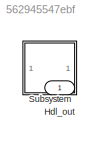
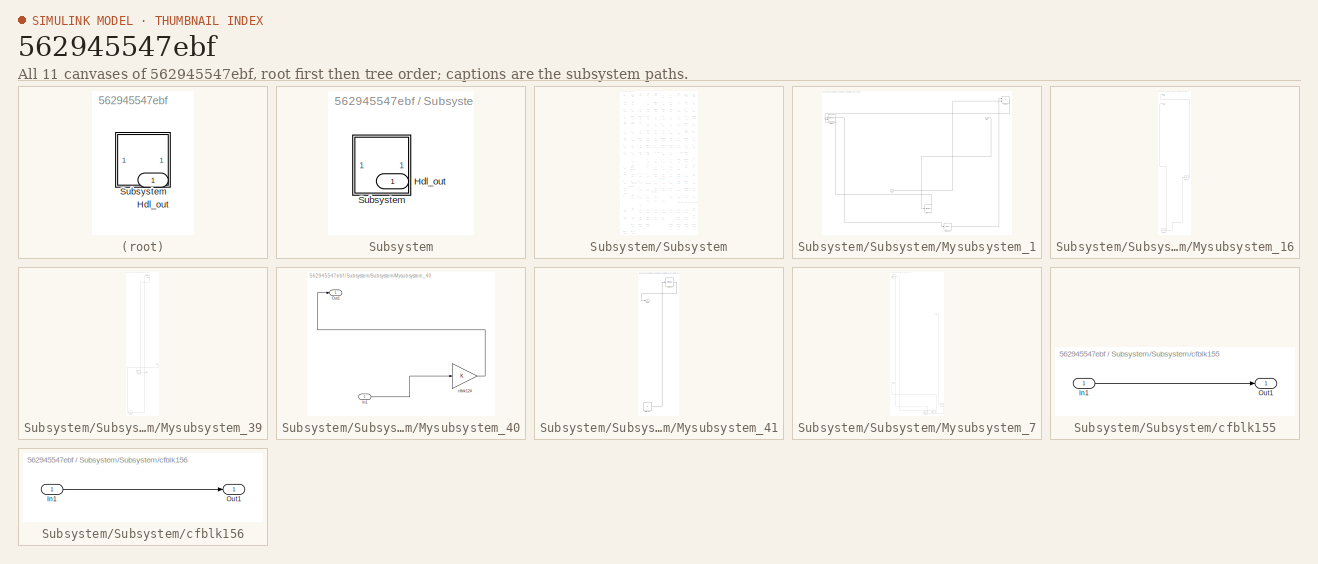
[diagram: thumbnail index - all 11 canvases of the model, root first then tree order]
MODEL slx_562945547ebf
KIND model
CONFIG AbsTol = auto
CONFIG EnableMultiTasking = off
CONFIG FixedStep = auto
CONFIG MaxStep = auto
CONFIG MinStep = auto
CONFIG RelTol = 1e-3
CONFIG SampleTimeConstraint = Unconstrained
CONFIG SolverName = VariableStepAuto
CONFIG StartTime = 0.0
CONFIG StopTime = 10.0
BLOCK [Outport] Hdl_out
  OutDataTypeStr = uint8
BLOCK [SubSystem] Subsystem
BLOCK [Outport] Subsystem/Hdl_out
  OutDataTypeStr = uint8
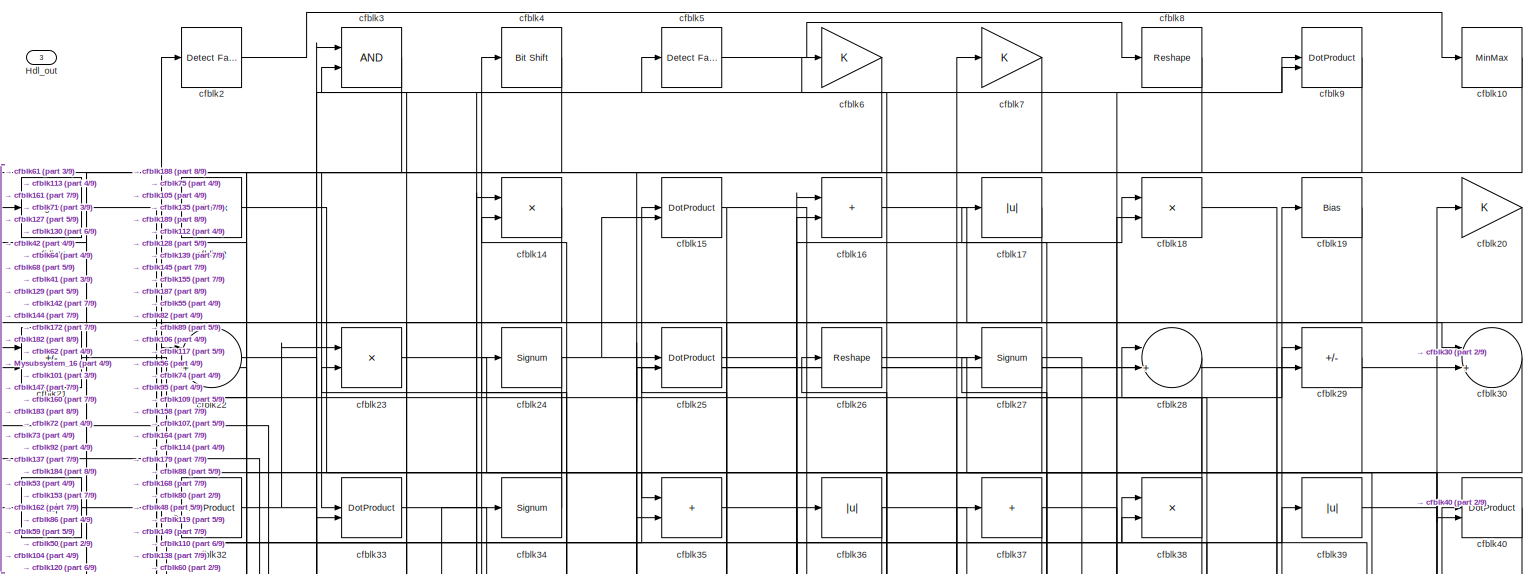
[diagram: Subsystem/Subsystem - part 1/9, full width, top band]
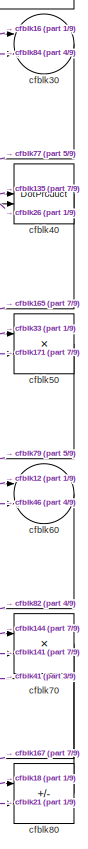
[diagram: Subsystem/Subsystem - part 2/9, top right region]
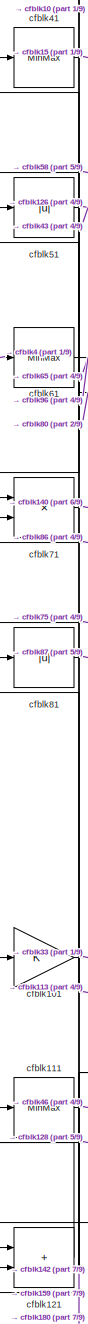
[diagram: Subsystem/Subsystem - part 3/9, middle left region]
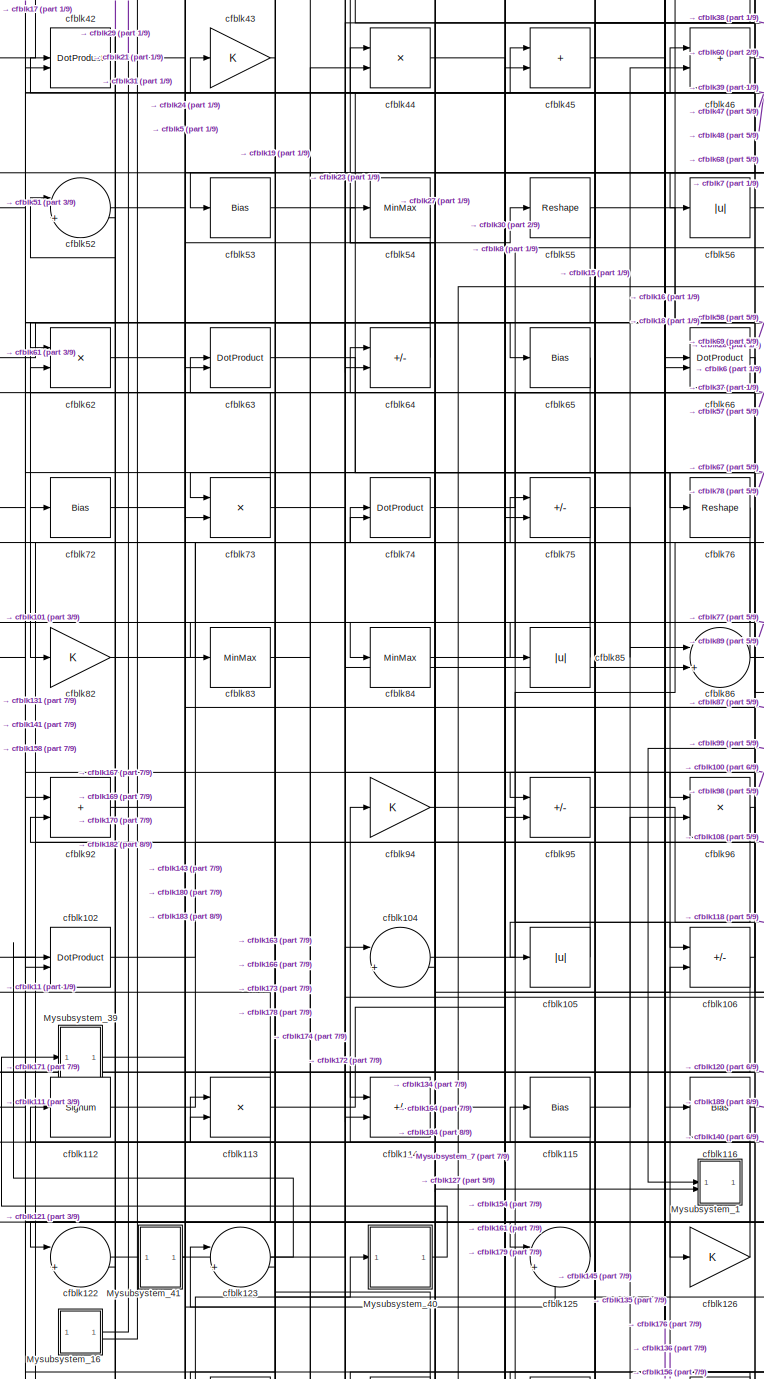
[diagram: Subsystem/Subsystem - part 4/9, central region]
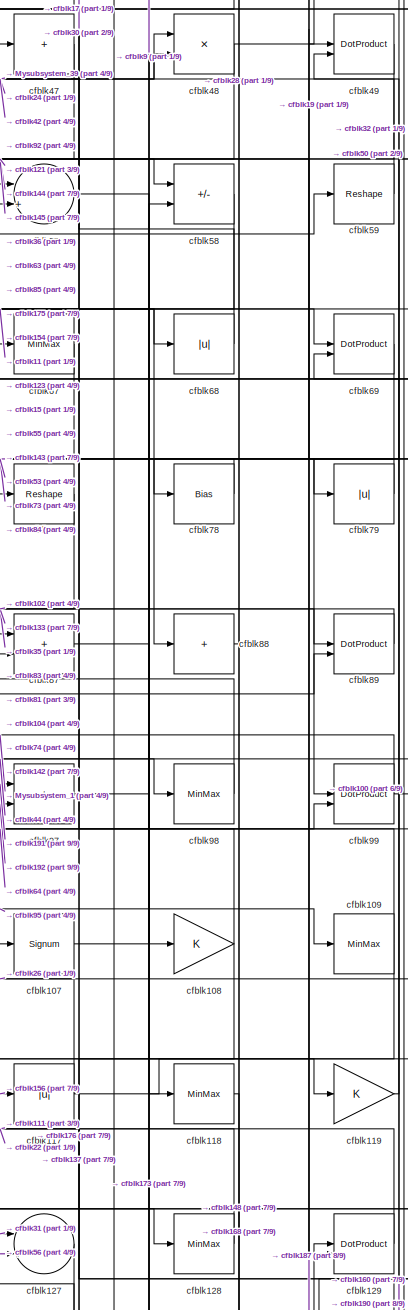
[diagram: Subsystem/Subsystem - part 5/9, middle right region]
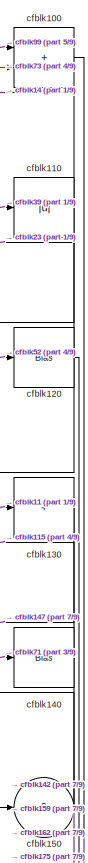
[diagram: Subsystem/Subsystem - part 6/9, middle right region]
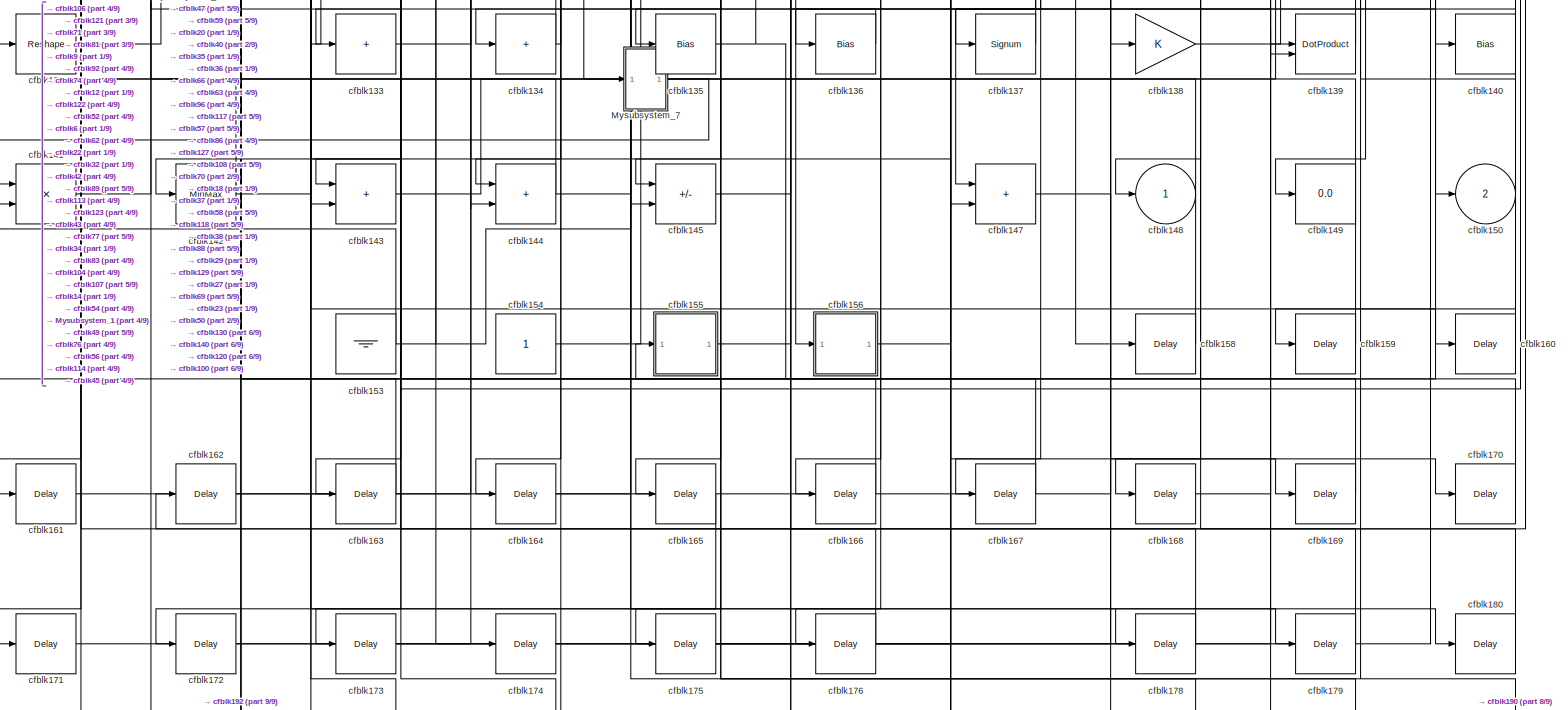
[diagram: Subsystem/Subsystem - part 7/9, full width, bottom band]
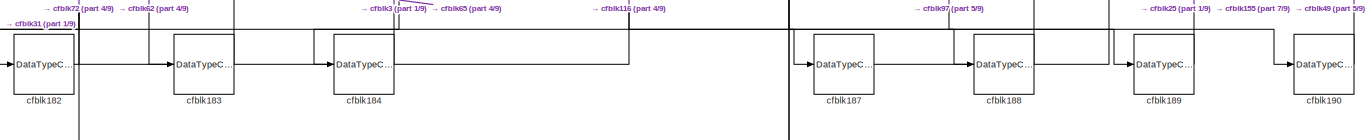
[diagram: Subsystem/Subsystem - part 8/9, full width, bottom band]
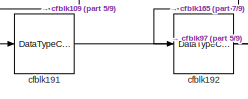
[diagram: Subsystem/Subsystem - part 9/9, bottom left region]
BLOCK [SubSystem] Subsystem/Subsystem
BLOCK [Outport] Subsystem/Subsystem/Hdl_out
  OutDataTypeStr = uint8
  Port = 3
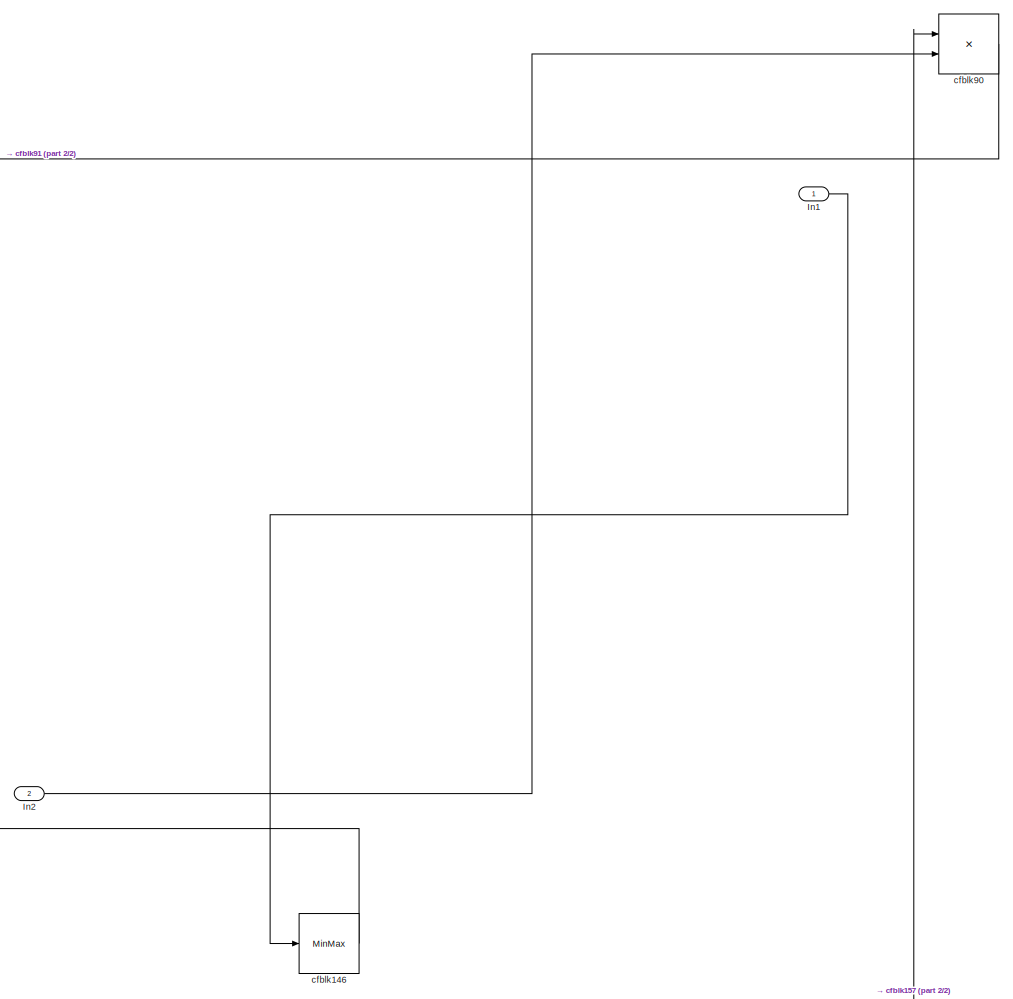
[diagram: Subsystem/Subsystem/Mysubsystem_1 - part 1/2, right side, full height]
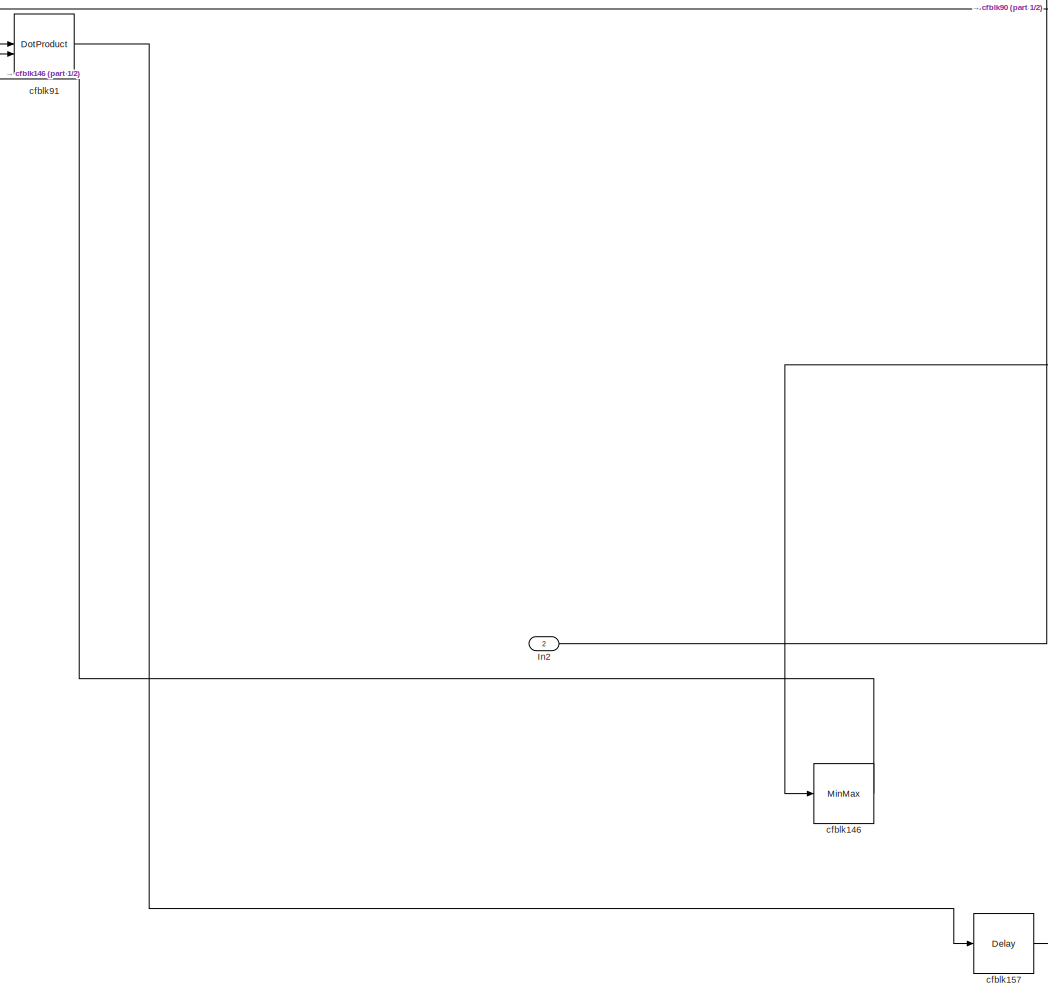
[diagram: Subsystem/Subsystem/Mysubsystem_1 - part 2/2, center side, full height]
BLOCK [SubSystem] Subsystem/Subsystem/Mysubsystem_1
  RTWFcnName = Mysubsystem_1
  RTWFcnNameOpts = User specified
  RTWFileNameOpts = Use function name
  RTWSystemCode = Reusable function
  TreatAsAtomicUnit = on
BLOCK [Inport] Subsystem/Subsystem/Mysubsystem_1/In1
BLOCK [Inport] Subsystem/Subsystem/Mysubsystem_1/In2
  Port = 2
BLOCK [MinMax] Subsystem/Subsystem/Mysubsystem_1/cfblk146
BLOCK [Delay] Subsystem/Subsystem/Mysubsystem_1/cfblk157
  InputPortMap = u0
  SampleTime = 1
BLOCK [Product] Subsystem/Subsystem/Mysubsystem_1/cfblk90
  Inputs = */
  RndMeth = Zero
  SaturateOnIntegerOverflow = on
BLOCK [DotProduct] Subsystem/Subsystem/Mysubsystem_1/cfblk91
  OutDataTypeStr = Inherit: Inherit via internal rule
BLOCK [SubSystem] Subsystem/Subsystem/Mysubsystem_16
  RTWFcnName = Mysubsystem_16
  RTWFcnNameOpts = User specified
  RTWFileNameOpts = Use function name
  RTWSystemCode = Reusable function
  TreatAsAtomicUnit = on
BLOCK [Outport] Subsystem/Subsystem/Mysubsystem_16/Out1
BLOCK [Bias] Subsystem/Subsystem/Mysubsystem_16/cfblk103
  Bias = 0.0
  SaturateOnIntegerOverflow = off
BLOCK [Reference] Subsystem/Subsystem/Mysubsystem_16/cfblk151  REF=hdlsllib/Sources/Counter
Free-Running
  SourceBlock = hdlsllib/Sources/Counter\nFree-Running
  SourceType = Counter Free-Running
BLOCK [Outport] Subsystem/Subsystem/Mysubsystem_16/y
  Port = 2
BLOCK [SubSystem] Subsystem/Subsystem/Mysubsystem_39
  RTWFcnName = Mysubsystem_39
  RTWFcnNameOpts = User specified
  RTWFileNameOpts = Use function name
  RTWSystemCode = Reusable function
  TreatAsAtomicUnit = on
BLOCK [Inport] Subsystem/Subsystem/Mysubsystem_39/In1
BLOCK [Outport] Subsystem/Subsystem/Mysubsystem_39/Out1
BLOCK [Reshape] Subsystem/Subsystem/Mysubsystem_39/cfblk13
BLOCK [Reshape] Subsystem/Subsystem/Mysubsystem_39/cfblk132
BLOCK [Delay] Subsystem/Subsystem/Mysubsystem_39/cfblk181
  InputPortMap = u0
  SampleTime = 1
BLOCK [SubSystem] Subsystem/Subsystem/Mysubsystem_40
  RTWFcnName = Mysubsystem_40
  RTWFcnNameOpts = User specified
  RTWFileNameOpts = Use function name
  RTWSystemCode = Reusable function
  TreatAsAtomicUnit = on
BLOCK [Inport] Subsystem/Subsystem/Mysubsystem_40/In1
BLOCK [Outport] Subsystem/Subsystem/Mysubsystem_40/Out1
BLOCK [Gain] Subsystem/Subsystem/Mysubsystem_40/cfblk124
BLOCK [SubSystem] Subsystem/Subsystem/Mysubsystem_41
  RTWFcnName = Mysubsystem_41
  RTWFcnNameOpts = User specified
  RTWFileNameOpts = Use function name
  RTWSystemCode = Reusable function
  TreatAsAtomicUnit = on
BLOCK [Outport] Subsystem/Subsystem/Mysubsystem_41/Out1
BLOCK [Constant] Subsystem/Subsystem/Mysubsystem_41/cfblk152
  SampleTime = -1
BLOCK [MinMax] Subsystem/Subsystem/Mysubsystem_41/cfblk93
BLOCK [SubSystem] Subsystem/Subsystem/Mysubsystem_7
  RTWFcnName = Mysubsystem_7
  RTWFcnNameOpts = User specified
  RTWFileNameOpts = Use function name
  RTWSystemCode = Reusable function
  TreatAsAtomicUnit = on
BLOCK [Inport] Subsystem/Subsystem/Mysubsystem_7/In1
BLOCK [Outport] Subsystem/Subsystem/Mysubsystem_7/Out1
BLOCK [Reference] Subsystem/Subsystem/Mysubsystem_7/cfblk1  REF=simulink/Logic and Bit
Operations/Bitwise
Operator
  LibrarySourceBlock = hdlsllib/Logic and Bit\nOperations/Bitwise\nOperator
  SourceBlock = simulink/Logic and Bit\nOperations/Bitwise\nOperator
  SourceType = Bitwise Operator
BLOCK [Delay] Subsystem/Subsystem/Mysubsystem_7/cfblk177
  InputPortMap = u0
  SampleTime = 1
BLOCK [DataTypeConversion] Subsystem/Subsystem/Mysubsystem_7/cfblk185
  OutDataTypeStr = boolean
  RndMeth = Floor
  SaturateOnIntegerOverflow = off
BLOCK [DataTypeConversion] Subsystem/Subsystem/Mysubsystem_7/cfblk186
  OutDataTypeStr = uint8
  RndMeth = Floor
  SaturateOnIntegerOverflow = off
BLOCK [MinMax] Subsystem/Subsystem/cfblk10
  OutDataTypeStr = uint8
BLOCK [Sum] Subsystem/Subsystem/cfblk100
  IconShape = rectangular
  OutDataTypeStr = uint8
BLOCK [Gain] Subsystem/Subsystem/cfblk101
  OutDataTypeStr = uint8
BLOCK [DotProduct] Subsystem/Subsystem/cfblk102
  OutDataTypeStr = uint8
BLOCK [Sum] Subsystem/Subsystem/cfblk104
  Inputs = |++
  OutDataTypeStr = uint8
BLOCK [Abs] Subsystem/Subsystem/cfblk105
  OutDataTypeStr = uint8
  SaturateOnIntegerOverflow = off
BLOCK [Sum] Subsystem/Subsystem/cfblk106
  IconShape = rectangular
  Inputs = +-
  OutDataTypeStr = uint8
BLOCK [Signum] Subsystem/Subsystem/cfblk107
BLOCK [Gain] Subsystem/Subsystem/cfblk108
  OutDataTypeStr = uint8
BLOCK [MinMax] Subsystem/Subsystem/cfblk109
  OutDataTypeStr = uint8
BLOCK [Signum] Subsystem/Subsystem/cfblk11
BLOCK [Abs] Subsystem/Subsystem/cfblk110
  OutDataTypeStr = uint8
  SaturateOnIntegerOverflow = off
BLOCK [MinMax] Subsystem/Subsystem/cfblk111
  OutDataTypeStr = uint8
BLOCK [Signum] Subsystem/Subsystem/cfblk112
BLOCK [Product] Subsystem/Subsystem/cfblk113
  Inputs = */
  OutDataTypeStr = uint8
  RndMeth = Zero
  SaturateOnIntegerOverflow = on
BLOCK [Sum] Subsystem/Subsystem/cfblk114
  IconShape = rectangular
  Inputs = +-
  OutDataTypeStr = uint8
BLOCK [Bias] Subsystem/Subsystem/cfblk115
  Bias = 0.0
  SaturateOnIntegerOverflow = off
BLOCK [Bias] Subsystem/Subsystem/cfblk116
  Bias = 0.0
  SaturateOnIntegerOverflow = off
BLOCK [Abs] Subsystem/Subsystem/cfblk117
  OutDataTypeStr = uint8
  SaturateOnIntegerOverflow = off
BLOCK [MinMax] Subsystem/Subsystem/cfblk118
  OutDataTypeStr = uint8
BLOCK [Gain] Subsystem/Subsystem/cfblk119
  OutDataTypeStr = uint8
BLOCK [MinMax] Subsystem/Subsystem/cfblk12
  OutDataTypeStr = uint8
BLOCK [Bias] Subsystem/Subsystem/cfblk120
  Bias = 0.0
  SaturateOnIntegerOverflow = off
BLOCK [Sum] Subsystem/Subsystem/cfblk121
  IconShape = rectangular
  OutDataTypeStr = uint8
BLOCK [Sum] Subsystem/Subsystem/cfblk122
  Inputs = |++
  OutDataTypeStr = uint8
BLOCK [Sum] Subsystem/Subsystem/cfblk123
  Inputs = |++
  OutDataTypeStr = uint8
BLOCK [Sum] Subsystem/Subsystem/cfblk125
  Inputs = |++
  OutDataTypeStr = uint8
BLOCK [Gain] Subsystem/Subsystem/cfblk126
  OutDataTypeStr = uint8
BLOCK [Sum] Subsystem/Subsystem/cfblk127
  Inputs = |++
  OutDataTypeStr = uint8
BLOCK [MinMax] Subsystem/Subsystem/cfblk128
  OutDataTypeStr = uint8
BLOCK [DotProduct] Subsystem/Subsystem/cfblk129
  OutDataTypeStr = uint8
BLOCK [Sum] Subsystem/Subsystem/cfblk130
  IconShape = rectangular
  Inputs = +
  OutDataTypeStr = uint8
BLOCK [Reshape] Subsystem/Subsystem/cfblk131
BLOCK [Sum] Subsystem/Subsystem/cfblk133
  IconShape = rectangular
  Inputs = +
  OutDataTypeStr = uint8
BLOCK [Sum] Subsystem/Subsystem/cfblk134
  IconShape = rectangular
  Inputs = +
  OutDataTypeStr = uint8
BLOCK [Bias] Subsystem/Subsystem/cfblk135
  Bias = 0.0
  SaturateOnIntegerOverflow = off
BLOCK [Bias] Subsystem/Subsystem/cfblk136
  Bias = 0.0
  SaturateOnIntegerOverflow = off
BLOCK [Signum] Subsystem/Subsystem/cfblk137
BLOCK [Gain] Subsystem/Subsystem/cfblk138
  OutDataTypeStr = uint8
BLOCK [DotProduct] Subsystem/Subsystem/cfblk139
  OutDataTypeStr = uint8
BLOCK [Product] Subsystem/Subsystem/cfblk14
  Inputs = */
  OutDataTypeStr = uint8
  RndMeth = Zero
  SaturateOnIntegerOverflow = on
BLOCK [Bias] Subsystem/Subsystem/cfblk140
  Bias = 0.0
  SaturateOnIntegerOverflow = off
BLOCK [Product] Subsystem/Subsystem/cfblk141
  Inputs = */
  OutDataTypeStr = uint8
  RndMeth = Zero
  SaturateOnIntegerOverflow = on
BLOCK [MinMax] Subsystem/Subsystem/cfblk142
  OutDataTypeStr = uint8
BLOCK [Sum] Subsystem/Subsystem/cfblk143
  IconShape = rectangular
  OutDataTypeStr = uint8
BLOCK [Sum] Subsystem/Subsystem/cfblk144
  IconShape = rectangular
  OutDataTypeStr = uint8
BLOCK [Sum] Subsystem/Subsystem/cfblk145
  IconShape = rectangular
  Inputs = +-
  OutDataTypeStr = uint8
BLOCK [Sum] Subsystem/Subsystem/cfblk147
  IconShape = rectangular
  OutDataTypeStr = uint8
BLOCK [Outport] Subsystem/Subsystem/cfblk148
  OutDataTypeStr = uint8
  VectorParamsAs1DForOutWhenUnconnected = off
BLOCK [Display] Subsystem/Subsystem/cfblk149
  Decimation = 1
BLOCK [DotProduct] Subsystem/Subsystem/cfblk15
  OutDataTypeStr = uint8
BLOCK [Outport] Subsystem/Subsystem/cfblk150
  OutDataTypeStr = uint8
  Port = 2
  VectorParamsAs1DForOutWhenUnconnected = off
BLOCK [Ground] Subsystem/Subsystem/cfblk153
BLOCK [Constant] Subsystem/Subsystem/cfblk154
  OutDataTypeStr = uint8
  SampleTime = -1
BLOCK [SubSystem] Subsystem/Subsystem/cfblk155
  LibrarySourceBlock = hdlsllib/Ports &\nSubsystems/Subsystem
BLOCK [Inport] Subsystem/Subsystem/cfblk155/In1
BLOCK [Outport] Subsystem/Subsystem/cfblk155/Out1
BLOCK [SubSystem] Subsystem/Subsystem/cfblk156
  LibrarySourceBlock = hdlsllib/Ports &\nSubsystems/Subsystem
BLOCK [Inport] Subsystem/Subsystem/cfblk156/In1
BLOCK [Outport] Subsystem/Subsystem/cfblk156/Out1
BLOCK [Delay] Subsystem/Subsystem/cfblk158
  InputPortMap = u0
  SampleTime = 1
BLOCK [Delay] Subsystem/Subsystem/cfblk159
  InputPortMap = u0
  SampleTime = 1
BLOCK [Sum] Subsystem/Subsystem/cfblk16
  IconShape = rectangular
  OutDataTypeStr = uint8
BLOCK [Delay] Subsystem/Subsystem/cfblk160
  InputPortMap = u0
  SampleTime = 1
BLOCK [Delay] Subsystem/Subsystem/cfblk161
  InputPortMap = u0
  SampleTime = 1
BLOCK [Delay] Subsystem/Subsystem/cfblk162
  InputPortMap = u0
  SampleTime = 1
BLOCK [Delay] Subsystem/Subsystem/cfblk163
  InputPortMap = u0
  SampleTime = 1
BLOCK [Delay] Subsystem/Subsystem/cfblk164
  InputPortMap = u0
  SampleTime = 1
BLOCK [Delay] Subsystem/Subsystem/cfblk165
  InputPortMap = u0
  SampleTime = 1
BLOCK [Delay] Subsystem/Subsystem/cfblk166
  InputPortMap = u0
  SampleTime = 1
BLOCK [Delay] Subsystem/Subsystem/cfblk167
  InputPortMap = u0
  SampleTime = 1
BLOCK [Delay] Subsystem/Subsystem/cfblk168
  InputPortMap = u0
  SampleTime = 1
BLOCK [Delay] Subsystem/Subsystem/cfblk169
  InputPortMap = u0
  SampleTime = 1
BLOCK [Abs] Subsystem/Subsystem/cfblk17
  OutDataTypeStr = uint8
  SaturateOnIntegerOverflow = off
BLOCK [Delay] Subsystem/Subsystem/cfblk170
  InputPortMap = u0
  SampleTime = 1
BLOCK [Delay] Subsystem/Subsystem/cfblk171
  InputPortMap = u0
  SampleTime = 1
BLOCK [Delay] Subsystem/Subsystem/cfblk172
  InputPortMap = u0
  SampleTime = 1
BLOCK [Delay] Subsystem/Subsystem/cfblk173
  InputPortMap = u0
  SampleTime = 1
BLOCK [Delay] Subsystem/Subsystem/cfblk174
  InputPortMap = u0
  SampleTime = 1
BLOCK [Delay] Subsystem/Subsystem/cfblk175
  InputPortMap = u0
  SampleTime = 1
BLOCK [Delay] Subsystem/Subsystem/cfblk176
  InputPortMap = u0
  SampleTime = 1
BLOCK [Delay] Subsystem/Subsystem/cfblk178
  InputPortMap = u0
  SampleTime = 1
BLOCK [Delay] Subsystem/Subsystem/cfblk179
  InputPortMap = u0
  SampleTime = 1
BLOCK [Product] Subsystem/Subsystem/cfblk18
  Inputs = */
  OutDataTypeStr = uint8
  RndMeth = Zero
  SaturateOnIntegerOverflow = on
BLOCK [Delay] Subsystem/Subsystem/cfblk180
  InputPortMap = u0
  SampleTime = 1
BLOCK [DataTypeConversion] Subsystem/Subsystem/cfblk182
  OutDataTypeStr = uint8
  RndMeth = Floor
  SaturateOnIntegerOverflow = off
BLOCK [DataTypeConversion] Subsystem/Subsystem/cfblk183
  OutDataTypeStr = uint8
  RndMeth = Floor
  SaturateOnIntegerOverflow = off
BLOCK [DataTypeConversion] Subsystem/Subsystem/cfblk184
  OutDataTypeStr = uint8
  RndMeth = Floor
  SaturateOnIntegerOverflow = off
BLOCK [DataTypeConversion] Subsystem/Subsystem/cfblk187
  OutDataTypeStr = uint8
  RndMeth = Floor
  SaturateOnIntegerOverflow = off
BLOCK [DataTypeConversion] Subsystem/Subsystem/cfblk188
  OutDataTypeStr = uint8
  RndMeth = Floor
  SaturateOnIntegerOverflow = off
BLOCK [DataTypeConversion] Subsystem/Subsystem/cfblk189
  OutDataTypeStr = uint8
  RndMeth = Floor
  SaturateOnIntegerOverflow = off
BLOCK [Bias] Subsystem/Subsystem/cfblk19
  Bias = 0.0
  SaturateOnIntegerOverflow = off
BLOCK [DataTypeConversion] Subsystem/Subsystem/cfblk190
  OutDataTypeStr = uint8
  RndMeth = Floor
  SaturateOnIntegerOverflow = off
BLOCK [DataTypeConversion] Subsystem/Subsystem/cfblk191
  OutDataTypeStr = uint8
  RndMeth = Floor
  SaturateOnIntegerOverflow = off
BLOCK [DataTypeConversion] Subsystem/Subsystem/cfblk192
  OutDataTypeStr = uint8
  RndMeth = Floor
  SaturateOnIntegerOverflow = off
BLOCK [Reference] Subsystem/Subsystem/cfblk2  REF=hdlsllib/Logic and Bit
Operations/Detect Fall
Nonpositive
  SourceBlock = hdlsllib/Logic and Bit\nOperations/Detect Fall\nNonpositive
  SourceType = Detect Fall Nonpositive
BLOCK [Gain] Subsystem/Subsystem/cfblk20
  OutDataTypeStr = uint8
BLOCK [Sum] Subsystem/Subsystem/cfblk21
  IconShape = rectangular
  Inputs = +-
  OutDataTypeStr = uint8
BLOCK [Sum] Subsystem/Subsystem/cfblk22
  Inputs = |++
  OutDataTypeStr = uint8
BLOCK [Product] Subsystem/Subsystem/cfblk23
  Inputs = */
  OutDataTypeStr = uint8
  RndMeth = Zero
  SaturateOnIntegerOverflow = on
BLOCK [Signum] Subsystem/Subsystem/cfblk24
BLOCK [DotProduct] Subsystem/Subsystem/cfblk25
  OutDataTypeStr = uint8
BLOCK [Reshape] Subsystem/Subsystem/cfblk26
BLOCK [Signum] Subsystem/Subsystem/cfblk27
BLOCK [Sum] Subsystem/Subsystem/cfblk28
  Inputs = |++
  OutDataTypeStr = uint8
BLOCK [Sum] Subsystem/Subsystem/cfblk29
  IconShape = rectangular
  Inputs = +-
  OutDataTypeStr = uint8
BLOCK [Logic] Subsystem/Subsystem/cfblk3
  AllPortsSameDT = off
  OutDataTypeStr = boolean
BLOCK [Sum] Subsystem/Subsystem/cfblk30
  Inputs = |++
  OutDataTypeStr = uint8
BLOCK [Abs] Subsystem/Subsystem/cfblk31
  OutDataTypeStr = uint8
  SaturateOnIntegerOverflow = off
BLOCK [DotProduct] Subsystem/Subsystem/cfblk32
  OutDataTypeStr = uint8
BLOCK [DotProduct] Subsystem/Subsystem/cfblk33
  OutDataTypeStr = uint8
BLOCK [Signum] Subsystem/Subsystem/cfblk34
BLOCK [Sum] Subsystem/Subsystem/cfblk35
  IconShape = rectangular
  OutDataTypeStr = uint8
BLOCK [Abs] Subsystem/Subsystem/cfblk36
  OutDataTypeStr = uint8
  SaturateOnIntegerOverflow = off
BLOCK [Sum] Subsystem/Subsystem/cfblk37
  IconShape = rectangular
  Inputs = +
  OutDataTypeStr = uint8
BLOCK [Product] Subsystem/Subsystem/cfblk38
  Inputs = */
  OutDataTypeStr = uint8
  RndMeth = Zero
  SaturateOnIntegerOverflow = on
BLOCK [Abs] Subsystem/Subsystem/cfblk39
  OutDataTypeStr = uint8
  SaturateOnIntegerOverflow = off
BLOCK [Reference] Subsystem/Subsystem/cfblk4  REF=hdlsllib/Logic and Bit
Operations/Bit Shift
  SourceBlock = hdlsllib/Logic and Bit\nOperations/Bit Shift
  SourceType = Bit Shift
BLOCK [DotProduct] Subsystem/Subsystem/cfblk40
  OutDataTypeStr = uint8
BLOCK [MinMax] Subsystem/Subsystem/cfblk41
  OutDataTypeStr = uint8
BLOCK [DotProduct] Subsystem/Subsystem/cfblk42
  OutDataTypeStr = uint8
BLOCK [Gain] Subsystem/Subsystem/cfblk43
  OutDataTypeStr = uint8
BLOCK [Product] Subsystem/Subsystem/cfblk44
  Inputs = */
  OutDataTypeStr = uint8
  RndMeth = Zero
  SaturateOnIntegerOverflow = on
BLOCK [Sum] Subsystem/Subsystem/cfblk45
  IconShape = rectangular
  OutDataTypeStr = uint8
BLOCK [Sum] Subsystem/Subsystem/cfblk46
  IconShape = rectangular
  OutDataTypeStr = uint8
BLOCK [Sum] Subsystem/Subsystem/cfblk47
  IconShape = rectangular
  Inputs = +
  OutDataTypeStr = uint8
BLOCK [Product] Subsystem/Subsystem/cfblk48
  Inputs = */
  OutDataTypeStr = uint8
  RndMeth = Zero
  SaturateOnIntegerOverflow = on
BLOCK [DotProduct] Subsystem/Subsystem/cfblk49
  OutDataTypeStr = uint8
BLOCK [Reference] Subsystem/Subsystem/cfblk5  REF=hdlsllib/Logic and Bit
Operations/Detect Fall
Nonpositive
  SourceBlock = hdlsllib/Logic and Bit\nOperations/Detect Fall\nNonpositive
  SourceType = Detect Fall Nonpositive
BLOCK [Product] Subsystem/Subsystem/cfblk50
  Inputs = */
  OutDataTypeStr = uint8
  RndMeth = Zero
  SaturateOnIntegerOverflow = on
BLOCK [Abs] Subsystem/Subsystem/cfblk51
  OutDataTypeStr = uint8
  SaturateOnIntegerOverflow = off
BLOCK [Sum] Subsystem/Subsystem/cfblk52
  Inputs = |++
  OutDataTypeStr = uint8
BLOCK [Bias] Subsystem/Subsystem/cfblk53
  Bias = 0.0
  SaturateOnIntegerOverflow = off
BLOCK [MinMax] Subsystem/Subsystem/cfblk54
  OutDataTypeStr = uint8
BLOCK [Reshape] Subsystem/Subsystem/cfblk55
BLOCK [Abs] Subsystem/Subsystem/cfblk56
  OutDataTypeStr = uint8
  SaturateOnIntegerOverflow = off
BLOCK [Sum] Subsystem/Subsystem/cfblk57
  Inputs = |++
  OutDataTypeStr = uint8
BLOCK [Sum] Subsystem/Subsystem/cfblk58
  IconShape = rectangular
  Inputs = +-
  OutDataTypeStr = uint8
BLOCK [Reshape] Subsystem/Subsystem/cfblk59
BLOCK [Gain] Subsystem/Subsystem/cfblk6
  OutDataTypeStr = uint8
BLOCK [Sum] Subsystem/Subsystem/cfblk60
  Inputs = |++
  OutDataTypeStr = uint8
BLOCK [MinMax] Subsystem/Subsystem/cfblk61
  OutDataTypeStr = uint8
BLOCK [Product] Subsystem/Subsystem/cfblk62
  Inputs = */
  OutDataTypeStr = uint8
  RndMeth = Zero
  SaturateOnIntegerOverflow = on
BLOCK [DotProduct] Subsystem/Subsystem/cfblk63
  OutDataTypeStr = uint8
BLOCK [Sum] Subsystem/Subsystem/cfblk64
  IconShape = rectangular
  Inputs = +-
  OutDataTypeStr = uint8
BLOCK [Bias] Subsystem/Subsystem/cfblk65
  Bias = 0.0
  SaturateOnIntegerOverflow = off
BLOCK [DotProduct] Subsystem/Subsystem/cfblk66
  OutDataTypeStr = uint8
BLOCK [MinMax] Subsystem/Subsystem/cfblk67
  OutDataTypeStr = uint8
BLOCK [Abs] Subsystem/Subsystem/cfblk68
  OutDataTypeStr = uint8
  SaturateOnIntegerOverflow = off
BLOCK [DotProduct] Subsystem/Subsystem/cfblk69
  OutDataTypeStr = uint8
BLOCK [Gain] Subsystem/Subsystem/cfblk7
  OutDataTypeStr = uint8
BLOCK [Product] Subsystem/Subsystem/cfblk70
  Inputs = */
  OutDataTypeStr = uint8
  RndMeth = Zero
  SaturateOnIntegerOverflow = on
BLOCK [Product] Subsystem/Subsystem/cfblk71
  Inputs = */
  OutDataTypeStr = uint8
  RndMeth = Zero
  SaturateOnIntegerOverflow = on
BLOCK [Bias] Subsystem/Subsystem/cfblk72
  Bias = 0.0
  SaturateOnIntegerOverflow = off
BLOCK [Product] Subsystem/Subsystem/cfblk73
  Inputs = */
  OutDataTypeStr = uint8
  RndMeth = Zero
  SaturateOnIntegerOverflow = on
BLOCK [DotProduct] Subsystem/Subsystem/cfblk74
  OutDataTypeStr = uint8
BLOCK [Sum] Subsystem/Subsystem/cfblk75
  IconShape = rectangular
  Inputs = +-
  OutDataTypeStr = uint8
BLOCK [Reshape] Subsystem/Subsystem/cfblk76
BLOCK [Reshape] Subsystem/Subsystem/cfblk77
BLOCK [Bias] Subsystem/Subsystem/cfblk78
  Bias = 0.0
  SaturateOnIntegerOverflow = off
BLOCK [Abs] Subsystem/Subsystem/cfblk79
  OutDataTypeStr = uint8
  SaturateOnIntegerOverflow = off
BLOCK [Reshape] Subsystem/Subsystem/cfblk8
BLOCK [Sum] Subsystem/Subsystem/cfblk80
  IconShape = rectangular
  Inputs = +-
  OutDataTypeStr = uint8
BLOCK [Abs] Subsystem/Subsystem/cfblk81
  OutDataTypeStr = uint8
  SaturateOnIntegerOverflow = off
BLOCK [Gain] Subsystem/Subsystem/cfblk82
  OutDataTypeStr = uint8
BLOCK [MinMax] Subsystem/Subsystem/cfblk83
  OutDataTypeStr = uint8
BLOCK [MinMax] Subsystem/Subsystem/cfblk84
  OutDataTypeStr = uint8
BLOCK [Abs] Subsystem/Subsystem/cfblk85
  OutDataTypeStr = uint8
  SaturateOnIntegerOverflow = off
BLOCK [Sum] Subsystem/Subsystem/cfblk86
  Inputs = |++
  OutDataTypeStr = uint8
BLOCK [Sum] Subsystem/Subsystem/cfblk87
  IconShape = rectangular
  OutDataTypeStr = uint8
BLOCK [Sum] Subsystem/Subsystem/cfblk88
  IconShape = rectangular
  Inputs = +
  OutDataTypeStr = uint8
BLOCK [DotProduct] Subsystem/Subsystem/cfblk89
  OutDataTypeStr = uint8
BLOCK [DotProduct] Subsystem/Subsystem/cfblk9
  OutDataTypeStr = uint8
BLOCK [Sum] Subsystem/Subsystem/cfblk92
  IconShape = rectangular
  OutDataTypeStr = uint8
BLOCK [Gain] Subsystem/Subsystem/cfblk94
  OutDataTypeStr = uint8
BLOCK [Sum] Subsystem/Subsystem/cfblk95
  IconShape = rectangular
  Inputs = +-
  OutDataTypeStr = uint8
BLOCK [Product] Subsystem/Subsystem/cfblk96
  Inputs = */
  OutDataTypeStr = uint8
  RndMeth = Zero
  SaturateOnIntegerOverflow = on
BLOCK [Sum] Subsystem/Subsystem/cfblk97
  IconShape = rectangular
  OutDataTypeStr = uint8
BLOCK [MinMax] Subsystem/Subsystem/cfblk98
  OutDataTypeStr = uint8
BLOCK [DotProduct] Subsystem/Subsystem/cfblk99
  OutDataTypeStr = uint8
LINE Subsystem/Subsystem/Mysubsystem_1/In1:1 -> Subsystem/Subsystem/Mysubsystem_1/cfblk146:1
LINE Subsystem/Subsystem/Mysubsystem_1/In2:1 -> Subsystem/Subsystem/Mysubsystem_1/cfblk90:2
LINE Subsystem/Subsystem/Mysubsystem_1/cfblk146:1 -> Subsystem/Subsystem/Mysubsystem_1/cfblk91:1
LINE Subsystem/Subsystem/Mysubsystem_1/cfblk157:1 -> Subsystem/Subsystem/Mysubsystem_1/cfblk90:1
LINE Subsystem/Subsystem/Mysubsystem_1/cfblk90:1 -> Subsystem/Subsystem/Mysubsystem_1/cfblk91:2
LINE Subsystem/Subsystem/Mysubsystem_1/cfblk91:1 -> Subsystem/Subsystem/Mysubsystem_1/cfblk157:1
LINE Subsystem/Subsystem/Mysubsystem_16/cfblk103:1 -> Subsystem/Subsystem/Mysubsystem_16/Out1:1
NET Subsystem/Subsystem/Mysubsystem_16/cfblk151:1 -> Subsystem/Subsystem/Mysubsystem_16/cfblk103:1, Subsystem/Subsystem/Mysubsystem_16/y:1
LINE Subsystem/Subsystem/Mysubsystem_16:1 -> Subsystem/Subsystem/cfblk21:2
LINE Subsystem/Subsystem/Mysubsystem_16:2 -> Subsystem/Subsystem/cfblk31:1
LINE Subsystem/Subsystem/Mysubsystem_39/In1:1 -> Subsystem/Subsystem/Mysubsystem_39/cfblk181:1
LINE Subsystem/Subsystem/Mysubsystem_39/cfblk132:1 -> Subsystem/Subsystem/Mysubsystem_39/Out1:1
LINE Subsystem/Subsystem/Mysubsystem_39/cfblk13:1 -> Subsystem/Subsystem/Mysubsystem_39/cfblk132:1
LINE Subsystem/Subsystem/Mysubsystem_39/cfblk181:1 -> Subsystem/Subsystem/Mysubsystem_39/cfblk13:1
NET Subsystem/Subsystem/Mysubsystem_39:1 -> Subsystem/Subsystem/Mysubsystem_40:1, Subsystem/Subsystem/cfblk125:2, Subsystem/Subsystem/cfblk48:1
LINE Subsystem/Subsystem/Mysubsystem_40/In1:1 -> Subsystem/Subsystem/Mysubsystem_40/cfblk124:1
LINE Subsystem/Subsystem/Mysubsystem_40/cfblk124:1 -> Subsystem/Subsystem/Mysubsystem_40/Out1:1
LINE Subsystem/Subsystem/Mysubsystem_40:1 -> Subsystem/Subsystem/Mysubsystem_39:1
LINE Subsystem/Subsystem/Mysubsystem_41/cfblk152:1 -> Subsystem/Subsystem/Mysubsystem_41/cfblk93:1
LINE Subsystem/Subsystem/Mysubsystem_41/cfblk93:1 -> Subsystem/Subsystem/Mysubsystem_41/Out1:1
LINE Subsystem/Subsystem/Mysubsystem_41:1 -> Subsystem/Subsystem/cfblk102:1
LINE Subsystem/Subsystem/Mysubsystem_7/In1:1 -> Subsystem/Subsystem/Mysubsystem_7/cfblk177:1
LINE Subsystem/Subsystem/Mysubsystem_7/cfblk177:1 -> Subsystem/Subsystem/Mysubsystem_7/cfblk185:1
LINE Subsystem/Subsystem/Mysubsystem_7/cfblk185:1 -> Subsystem/Subsystem/Mysubsystem_7/cfblk1:1
LINE Subsystem/Subsystem/Mysubsystem_7/cfblk186:1 -> Subsystem/Subsystem/Mysubsystem_7/Out1:1
LINE Subsystem/Subsystem/Mysubsystem_7/cfblk1:1 -> Subsystem/Subsystem/Mysubsystem_7/cfblk186:1
LINE Subsystem/Subsystem/Mysubsystem_7:1 -> Subsystem/Subsystem/cfblk141:2
LINE Subsystem/Subsystem/cfblk100:1 -> Subsystem/Subsystem/cfblk162:1
LINE Subsystem/Subsystem/cfblk101:1 -> Subsystem/Subsystem/cfblk33:2
LINE Subsystem/Subsystem/cfblk102:1 -> Subsystem/Subsystem/cfblk99:2
NET Subsystem/Subsystem/cfblk104:1 -> Subsystem/Subsystem/cfblk67:1, Subsystem/Subsystem/cfblk87:2
LINE Subsystem/Subsystem/cfblk105:1 -> Subsystem/Subsystem/cfblk63:1
NET Subsystem/Subsystem/cfblk106:1 -> Subsystem/Subsystem/cfblk171:1, Subsystem/Subsystem/cfblk6:1
LINE Subsystem/Subsystem/cfblk107:1 -> Subsystem/Subsystem/cfblk9:1
NET Subsystem/Subsystem/cfblk108:1 -> Subsystem/Subsystem/cfblk137:1, Subsystem/Subsystem/cfblk64:1
NET Subsystem/Subsystem/cfblk109:1 -> Subsystem/Subsystem/cfblk17:1, Subsystem/Subsystem/cfblk191:1
LINE Subsystem/Subsystem/cfblk10:1 -> Subsystem/Subsystem/cfblk71:1
NET Subsystem/Subsystem/cfblk110:1 -> Subsystem/Subsystem/cfblk14:2, Subsystem/Subsystem/cfblk150:1
LINE Subsystem/Subsystem/cfblk111:1 -> Subsystem/Subsystem/cfblk46:1
LINE Subsystem/Subsystem/cfblk112:1 -> Subsystem/Subsystem/cfblk16:1
NET Subsystem/Subsystem/cfblk113:1 -> Subsystem/Subsystem/cfblk11:1, Subsystem/Subsystem/cfblk121:1, Subsystem/Subsystem/cfblk95:2
NET Subsystem/Subsystem/cfblk114:1 -> Subsystem/Subsystem/cfblk178:1, Subsystem/Subsystem/cfblk179:1
NET Subsystem/Subsystem/cfblk115:1 -> Subsystem/Subsystem/cfblk122:1, Subsystem/Subsystem/cfblk46:2
NET Subsystem/Subsystem/cfblk116:1 -> Subsystem/Subsystem/cfblk125:1, Subsystem/Subsystem/cfblk189:1
NET Subsystem/Subsystem/cfblk117:1 -> Subsystem/Subsystem/cfblk119:1, Subsystem/Subsystem/cfblk26:1
LINE Subsystem/Subsystem/cfblk118:1 -> Subsystem/Subsystem/cfblk168:1
LINE Subsystem/Subsystem/cfblk119:1 -> Subsystem/Subsystem/cfblk32:1
NET Subsystem/Subsystem/cfblk11:1 -> Subsystem/Subsystem/cfblk130:1, Subsystem/Subsystem/cfblk68:1
NET Subsystem/Subsystem/cfblk120:1 -> Subsystem/Subsystem/cfblk142:1, Subsystem/Subsystem/cfblk175:1, Subsystem/Subsystem/cfblk23:2
LINE Subsystem/Subsystem/cfblk121:1 -> Subsystem/Subsystem/cfblk58:1
LINE Subsystem/Subsystem/cfblk122:1 -> Subsystem/Subsystem/cfblk55:1
LINE Subsystem/Subsystem/cfblk123:1 -> Subsystem/Subsystem/cfblk45:1
LINE Subsystem/Subsystem/cfblk125:1 -> Subsystem/Subsystem/cfblk112:1
LINE Subsystem/Subsystem/cfblk126:1 -> Subsystem/Subsystem/cfblk94:1
LINE Subsystem/Subsystem/cfblk127:1 -> Subsystem/Subsystem/cfblk176:1
LINE Subsystem/Subsystem/cfblk128:1 -> Subsystem/Subsystem/cfblk111:1
LINE Subsystem/Subsystem/cfblk129:1 -> Subsystem/Subsystem/cfblk22:2
LINE Subsystem/Subsystem/cfblk12:1 -> Subsystem/Subsystem/cfblk60:1
LINE Subsystem/Subsystem/cfblk130:1 -> Subsystem/Subsystem/cfblk147:1
LINE Subsystem/Subsystem/cfblk131:1 -> Subsystem/Subsystem/cfblk74:1
LINE Subsystem/Subsystem/cfblk133:1 -> Subsystem/Subsystem/cfblk107:1
NET Subsystem/Subsystem/cfblk134:1 -> Subsystem/Subsystem/Mysubsystem_1:2, Subsystem/Subsystem/cfblk54:1, Subsystem/Subsystem/cfblk92:2
NET Subsystem/Subsystem/cfblk135:1 -> Subsystem/Subsystem/cfblk40:1, Subsystem/Subsystem/cfblk96:2
LINE Subsystem/Subsystem/cfblk136:1 -> Subsystem/Subsystem/cfblk134:1
LINE Subsystem/Subsystem/cfblk137:1 -> Subsystem/Subsystem/cfblk32:2
LINE Subsystem/Subsystem/cfblk138:1 -> Subsystem/Subsystem/cfblk20:1
LINE Subsystem/Subsystem/cfblk139:1 -> Subsystem/Subsystem/cfblk27:1
NET Subsystem/Subsystem/cfblk140:1 -> Subsystem/Subsystem/cfblk115:1, Subsystem/Subsystem/cfblk159:1
NET Subsystem/Subsystem/cfblk141:1 -> Subsystem/Subsystem/cfblk113:1, Subsystem/Subsystem/cfblk70:2
NET Subsystem/Subsystem/cfblk142:1 -> Subsystem/Subsystem/cfblk12:1, Subsystem/Subsystem/cfblk81:1, Subsystem/Subsystem/cfblk89:2
LINE Subsystem/Subsystem/cfblk143:1 -> Subsystem/Subsystem/cfblk129:1
NET Subsystem/Subsystem/cfblk144:1 -> Subsystem/Subsystem/cfblk22:1, Subsystem/Subsystem/cfblk70:1
LINE Subsystem/Subsystem/cfblk145:1 -> Subsystem/Subsystem/cfblk36:1
LINE Subsystem/Subsystem/cfblk147:1 -> Subsystem/Subsystem/cfblk169:1
LINE Subsystem/Subsystem/cfblk14:1 -> Subsystem/Subsystem/cfblk21:1
NET Subsystem/Subsystem/cfblk153:1 -> Subsystem/Subsystem/cfblk131:1, Subsystem/Subsystem/cfblk34:1, Subsystem/Subsystem/cfblk35:2
NET Subsystem/Subsystem/cfblk154:1 -> Subsystem/Subsystem/cfblk106:2, Subsystem/Subsystem/cfblk59:1
LINE Subsystem/Subsystem/cfblk155/In1:1 -> Subsystem/Subsystem/cfblk155/Out1:1
LINE Subsystem/Subsystem/cfblk155:1 -> Subsystem/Subsystem/cfblk38:1
LINE Subsystem/Subsystem/cfblk156/In1:1 -> Subsystem/Subsystem/cfblk156/Out1:1
LINE Subsystem/Subsystem/cfblk156:1 -> Subsystem/Subsystem/cfblk117:1
LINE Subsystem/Subsystem/cfblk158:1 -> Subsystem/Subsystem/cfblk92:1
LINE Subsystem/Subsystem/cfblk159:1 -> Subsystem/Subsystem/cfblk71:2
NET Subsystem/Subsystem/cfblk15:1 -> Subsystem/Subsystem/cfblk105:1, Subsystem/Subsystem/cfblk88:1
LINE Subsystem/Subsystem/cfblk160:1 -> Subsystem/Subsystem/cfblk69:2
LINE Subsystem/Subsystem/cfblk161:1 -> Subsystem/Subsystem/cfblk45:2
LINE Subsystem/Subsystem/cfblk162:1 -> Subsystem/Subsystem/cfblk14:1
LINE Subsystem/Subsystem/cfblk163:1 -> Subsystem/Subsystem/cfblk141:1
LINE Subsystem/Subsystem/cfblk164:1 -> Subsystem/Subsystem/cfblk18:2
LINE Subsystem/Subsystem/cfblk165:1 -> Subsystem/Subsystem/cfblk192:1
LINE Subsystem/Subsystem/cfblk166:1 -> Subsystem/Subsystem/cfblk123:1
LINE Subsystem/Subsystem/cfblk167:1 -> Subsystem/Subsystem/cfblk52:1
LINE Subsystem/Subsystem/cfblk168:1 -> Subsystem/Subsystem/cfblk29:2
LINE Subsystem/Subsystem/cfblk169:1 -> Subsystem/Subsystem/cfblk62:2
LINE Subsystem/Subsystem/cfblk16:1 -> Subsystem/Subsystem/cfblk30:1
LINE Subsystem/Subsystem/cfblk170:1 -> Subsystem/Subsystem/cfblk122:2
LINE Subsystem/Subsystem/cfblk171:1 -> Subsystem/Subsystem/cfblk50:2
LINE Subsystem/Subsystem/cfblk172:1 -> Subsystem/Subsystem/cfblk104:1
LINE Subsystem/Subsystem/cfblk173:1 -> Subsystem/Subsystem/cfblk58:2
LINE Subsystem/Subsystem/cfblk174:1 -> Subsystem/Subsystem/cfblk139:1
LINE Subsystem/Subsystem/cfblk175:1 -> Subsystem/Subsystem/cfblk57:2
LINE Subsystem/Subsystem/cfblk176:1 -> Subsystem/Subsystem/cfblk66:1
LINE Subsystem/Subsystem/cfblk178:1 -> Subsystem/Subsystem/cfblk113:2
LINE Subsystem/Subsystem/cfblk179:1 -> Subsystem/Subsystem/cfblk38:2
LINE Subsystem/Subsystem/cfblk17:1 -> Subsystem/Subsystem/cfblk42:2
LINE Subsystem/Subsystem/cfblk180:1 -> Subsystem/Subsystem/cfblk121:2
NET Subsystem/Subsystem/cfblk182:1 -> Subsystem/Subsystem/cfblk116:1, Subsystem/Subsystem/cfblk72:1
LINE Subsystem/Subsystem/cfblk183:1 -> Subsystem/Subsystem/cfblk3:1
LINE Subsystem/Subsystem/cfblk184:1 -> Subsystem/Subsystem/cfblk3:2
LINE Subsystem/Subsystem/cfblk187:1 -> Subsystem/Subsystem/cfblk49:1
LINE Subsystem/Subsystem/cfblk188:1 -> Subsystem/Subsystem/cfblk25:1
LINE Subsystem/Subsystem/cfblk189:1 -> Subsystem/Subsystem/cfblk25:2
LINE Subsystem/Subsystem/cfblk18:1 -> Subsystem/Subsystem/cfblk80:1
NET Subsystem/Subsystem/cfblk190:1 -> Subsystem/Subsystem/cfblk155:1, Subsystem/Subsystem/cfblk49:2
LINE Subsystem/Subsystem/cfblk191:1 -> Subsystem/Subsystem/cfblk97:1
LINE Subsystem/Subsystem/cfblk192:1 -> Subsystem/Subsystem/cfblk97:2
LINE Subsystem/Subsystem/cfblk19:1 -> Subsystem/Subsystem/cfblk53:1
LINE Subsystem/Subsystem/cfblk20:1 -> Subsystem/Subsystem/cfblk135:1
NET Subsystem/Subsystem/cfblk21:1 -> Subsystem/Subsystem/cfblk35:1, Subsystem/Subsystem/cfblk64:2, Subsystem/Subsystem/cfblk80:2
LINE Subsystem/Subsystem/cfblk22:1 -> Subsystem/Subsystem/cfblk160:1
NET Subsystem/Subsystem/cfblk23:1 -> Subsystem/Subsystem/cfblk149:1, Subsystem/Subsystem/cfblk86:2, Subsystem/Subsystem/cfblk9:2
NET Subsystem/Subsystem/cfblk24:1 -> Subsystem/Subsystem/cfblk15:2, Subsystem/Subsystem/cfblk28:2, Subsystem/Subsystem/cfblk73:2
LINE Subsystem/Subsystem/cfblk25:1 -> Subsystem/Subsystem/cfblk187:1
LINE Subsystem/Subsystem/cfblk26:1 -> Subsystem/Subsystem/cfblk40:2
NET Subsystem/Subsystem/cfblk27:1 -> Subsystem/Subsystem/cfblk104:2, Subsystem/Subsystem/cfblk158:1
LINE Subsystem/Subsystem/cfblk28:1 -> Subsystem/Subsystem/cfblk56:1
LINE Subsystem/Subsystem/cfblk29:1 -> Subsystem/Subsystem/cfblk62:1
LINE Subsystem/Subsystem/cfblk2:1 -> Subsystem/Subsystem/cfblk10:1
LINE Subsystem/Subsystem/cfblk30:1 -> Subsystem/Subsystem/cfblk77:1
NET Subsystem/Subsystem/cfblk31:1 -> Subsystem/Subsystem/cfblk127:1, Subsystem/Subsystem/cfblk188:1
NET Subsystem/Subsystem/cfblk32:1 -> Subsystem/Subsystem/cfblk147:2, Subsystem/Subsystem/cfblk23:1
LINE Subsystem/Subsystem/cfblk33:1 -> Subsystem/Subsystem/cfblk50:1
LINE Subsystem/Subsystem/cfblk34:1 -> Subsystem/Subsystem/cfblk4:1
NET Subsystem/Subsystem/cfblk35:1 -> Subsystem/Subsystem/cfblk128:1, Subsystem/Subsystem/cfblk139:2, Subsystem/Subsystem/cfblk89:1
NET Subsystem/Subsystem/cfblk36:1 -> Subsystem/Subsystem/cfblk129:2, Subsystem/Subsystem/cfblk144:2
NET Subsystem/Subsystem/cfblk37:1 -> Subsystem/Subsystem/cfblk138:1, Subsystem/Subsystem/cfblk95:1
NET Subsystem/Subsystem/cfblk38:1 -> Subsystem/Subsystem/cfblk114:1, Subsystem/Subsystem/cfblk2:1
LINE Subsystem/Subsystem/cfblk39:1 -> Subsystem/Subsystem/cfblk110:1
LINE Subsystem/Subsystem/cfblk3:1 -> Subsystem/Subsystem/cfblk182:1
LINE Subsystem/Subsystem/cfblk40:1 -> Subsystem/Subsystem/cfblk165:1
LINE Subsystem/Subsystem/cfblk41:1 -> Subsystem/Subsystem/cfblk15:1
LINE Subsystem/Subsystem/cfblk42:1 -> Subsystem/Subsystem/cfblk180:1
LINE Subsystem/Subsystem/cfblk43:1 -> Subsystem/Subsystem/cfblk173:1
NET Subsystem/Subsystem/cfblk44:1 -> Subsystem/Subsystem/cfblk76:1, Subsystem/Subsystem/cfblk98:1
LINE Subsystem/Subsystem/cfblk45:1 -> Subsystem/Subsystem/cfblk66:2
LINE Subsystem/Subsystem/cfblk46:1 -> Subsystem/Subsystem/cfblk60:2
NET Subsystem/Subsystem/cfblk47:1 -> Subsystem/Subsystem/cfblk145:2, Subsystem/Subsystem/cfblk85:1
NET Subsystem/Subsystem/cfblk48:1 -> Subsystem/Subsystem/cfblk19:1, Subsystem/Subsystem/cfblk63:2
LINE Subsystem/Subsystem/cfblk49:1 -> Subsystem/Subsystem/cfblk144:1
LINE Subsystem/Subsystem/cfblk4:1 -> Subsystem/Subsystem/cfblk61:1
LINE Subsystem/Subsystem/cfblk50:1 -> Subsystem/Subsystem/cfblk79:1
NET Subsystem/Subsystem/cfblk51:1 -> Subsystem/Subsystem/cfblk126:1, Subsystem/Subsystem/cfblk43:1
LINE Subsystem/Subsystem/cfblk52:1 -> Subsystem/Subsystem/cfblk120:1
NET Subsystem/Subsystem/cfblk53:1 -> Subsystem/Subsystem/cfblk7:1, Subsystem/Subsystem/cfblk99:1
LINE Subsystem/Subsystem/cfblk54:1 -> Subsystem/Subsystem/cfblk143:2
NET Subsystem/Subsystem/cfblk55:1 -> Subsystem/Subsystem/cfblk114:2, Subsystem/Subsystem/cfblk18:1, Subsystem/Subsystem/cfblk69:1
NET Subsystem/Subsystem/cfblk56:1 -> Subsystem/Subsystem/Mysubsystem_7:1, Subsystem/Subsystem/cfblk127:2, Subsystem/Subsystem/cfblk29:1
LINE Subsystem/Subsystem/cfblk57:1 -> Subsystem/Subsystem/cfblk109:1
LINE Subsystem/Subsystem/cfblk58:1 -> Subsystem/Subsystem/cfblk123:2
LINE Subsystem/Subsystem/cfblk59:1 -> Subsystem/Subsystem/cfblk24:1
LINE Subsystem/Subsystem/cfblk5:1 -> Subsystem/Subsystem/cfblk8:1
LINE Subsystem/Subsystem/cfblk60:1 -> Subsystem/Subsystem/cfblk82:1
NET Subsystem/Subsystem/cfblk61:1 -> Subsystem/Subsystem/cfblk65:1, Subsystem/Subsystem/cfblk96:1
LINE Subsystem/Subsystem/cfblk62:1 -> Subsystem/Subsystem/cfblk183:1
LINE Subsystem/Subsystem/cfblk63:1 -> Subsystem/Subsystem/cfblk156:1
LINE Subsystem/Subsystem/cfblk64:1 -> Subsystem/Subsystem/cfblk44:1
LINE Subsystem/Subsystem/cfblk65:1 -> Subsystem/Subsystem/cfblk184:1
LINE Subsystem/Subsystem/cfblk66:1 -> Subsystem/Subsystem/cfblk136:1
LINE Subsystem/Subsystem/cfblk67:1 -> Subsystem/Subsystem/cfblk84:1
LINE Subsystem/Subsystem/cfblk68:1 -> Subsystem/Subsystem/cfblk42:1
LINE Subsystem/Subsystem/cfblk69:1 -> Subsystem/Subsystem/cfblk143:1
LINE Subsystem/Subsystem/cfblk6:1 -> Subsystem/Subsystem/cfblk172:1
LINE Subsystem/Subsystem/cfblk70:1 -> Subsystem/Subsystem/cfblk167:1
LINE Subsystem/Subsystem/cfblk71:1 -> Subsystem/Subsystem/cfblk140:1
LINE Subsystem/Subsystem/cfblk72:1 -> Subsystem/Subsystem/cfblk5:1
NET Subsystem/Subsystem/cfblk73:1 -> Subsystem/Subsystem/cfblk100:2, Subsystem/Subsystem/cfblk52:2
LINE Subsystem/Subsystem/cfblk74:1 -> Subsystem/Subsystem/cfblk37:1
NET Subsystem/Subsystem/cfblk75:1 -> Subsystem/Subsystem/cfblk101:1, Subsystem/Subsystem/cfblk86:1
NET Subsystem/Subsystem/cfblk76:1 -> Subsystem/Subsystem/cfblk163:1, Subsystem/Subsystem/cfblk164:1
NET Subsystem/Subsystem/cfblk77:1 -> Subsystem/Subsystem/cfblk102:2, Subsystem/Subsystem/cfblk133:1
LINE Subsystem/Subsystem/cfblk78:1 -> Subsystem/Subsystem/cfblk73:1
LINE Subsystem/Subsystem/cfblk79:1 -> Subsystem/Subsystem/cfblk78:1
LINE Subsystem/Subsystem/cfblk7:1 -> Subsystem/Subsystem/cfblk33:1
LINE Subsystem/Subsystem/cfblk80:1 -> Subsystem/Subsystem/cfblk41:1
LINE Subsystem/Subsystem/cfblk81:1 -> Subsystem/Subsystem/cfblk87:1
LINE Subsystem/Subsystem/cfblk82:1 -> Subsystem/Subsystem/cfblk16:2
NET Subsystem/Subsystem/cfblk83:1 -> Subsystem/Subsystem/cfblk174:1, Subsystem/Subsystem/cfblk44:2
NET Subsystem/Subsystem/cfblk84:1 -> Subsystem/Subsystem/cfblk30:2, Subsystem/Subsystem/cfblk57:1
LINE Subsystem/Subsystem/cfblk85:1 -> Subsystem/Subsystem/cfblk75:1
NET Subsystem/Subsystem/cfblk86:1 -> Subsystem/Subsystem/cfblk170:1, Subsystem/Subsystem/cfblk51:1
LINE Subsystem/Subsystem/cfblk87:1 -> Subsystem/Subsystem/cfblk108:1
NET Subsystem/Subsystem/cfblk88:1 -> Subsystem/Subsystem/cfblk148:1, Subsystem/Subsystem/cfblk28:1
LINE Subsystem/Subsystem/cfblk89:1 -> Subsystem/Subsystem/cfblk83:1
LINE Subsystem/Subsystem/cfblk8:1 -> Subsystem/Subsystem/cfblk75:2
NET Subsystem/Subsystem/cfblk92:1 -> Subsystem/Subsystem/cfblk39:1, Subsystem/Subsystem/cfblk47:1, Subsystem/Subsystem/cfblk48:2
LINE Subsystem/Subsystem/cfblk94:1 -> Subsystem/Subsystem/cfblk106:1
LINE Subsystem/Subsystem/cfblk95:1 -> Subsystem/Subsystem/cfblk118:1
NET Subsystem/Subsystem/cfblk96:1 -> Subsystem/Subsystem/cfblk145:1, Subsystem/Subsystem/cfblk166:1
LINE Subsystem/Subsystem/cfblk97:1 -> Subsystem/Subsystem/cfblk190:1
LINE Subsystem/Subsystem/cfblk98:1 -> Subsystem/Subsystem/cfblk74:2
NET Subsystem/Subsystem/cfblk99:1 -> Subsystem/Subsystem/Mysubsystem_1:1, Subsystem/Subsystem/cfblk100:1
LINE Subsystem/Subsystem/cfblk9:1 -> Subsystem/Subsystem/cfblk161:1
note: NET lines group one-source signal fan-out (src -> all destinations, sorted); 1:1 wires keep LINE
